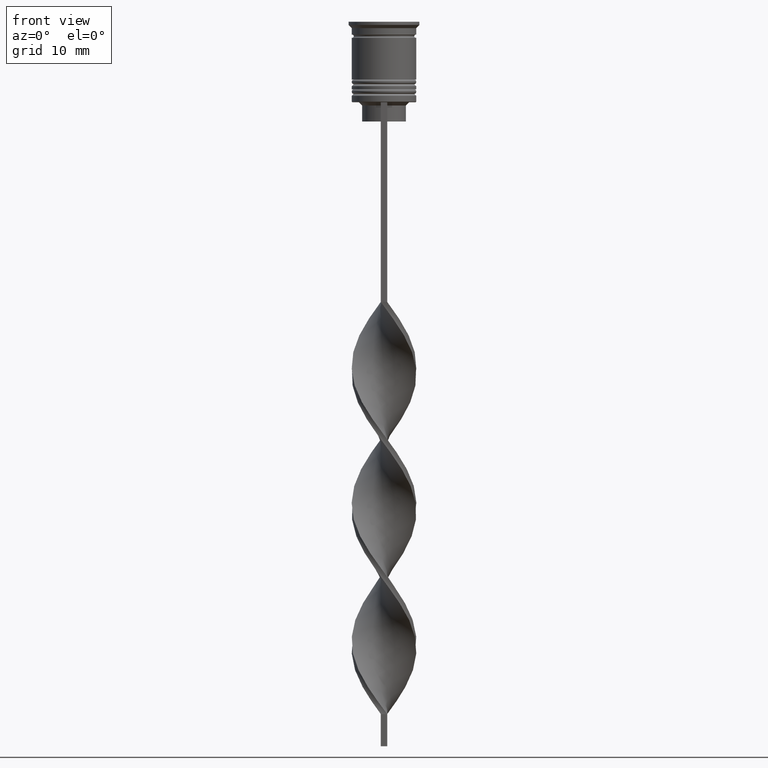
[diagram: clean part render]
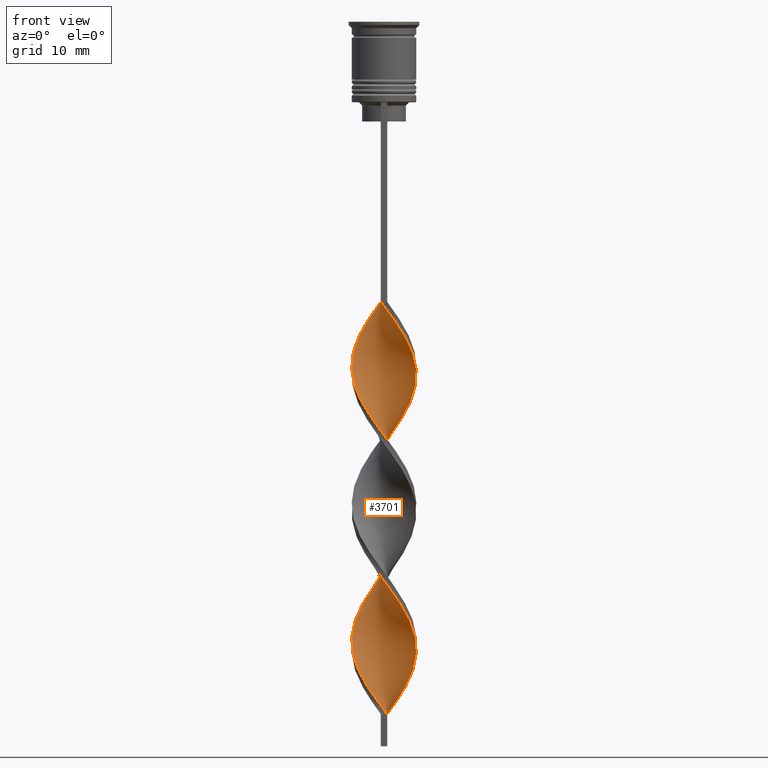
[diagram: same view with one face highlighted and labeled with its STEP entity id]
A machine part, front view. The second image highlights one B-rep face of the part: STEP entity #3701.
In plain terms, the highlighted face is a freeform B-spline surface patch.
Its self-contained STEP definition (entity closure, byte-faithful):
#10 = CARTESIAN_POINT ( 'NONE',  ( 3.830886956102703245, -3.251815666602607013, -92.73076923076922640 ) ) ;
#15 = CARTESIAN_POINT ( 'NONE',  ( 3.830886956102703245, -3.251815666602607013, -92.73076923076922640 ) ) ;
#29 = CARTESIAN_POINT ( 'NONE',  ( 0.5000000000000006661, 4.999999999999999112, -107.5000000000000000 ) ) ;
#45 = CARTESIAN_POINT ( 'NONE',  ( 4.769828676396802969, -1.694403338218443800, -95.19230769230769340 ) ) ;
#51 = CARTESIAN_POINT ( 'NONE',  ( 3.436045048790602241, 3.716969558312884114, -80.42307692307691980 ) ) ;
#63 = CARTESIAN_POINT ( 'NONE',  ( -1.315104909338224992, -4.888022846936948440, -105.0384615384615330 ) ) ;
#72 = CARTESIAN_POINT ( 'NONE',  ( -0.7111074127247647425, -4.974366919274038956, -105.8589743589743506 ) ) ;
#85 = CARTESIAN_POINT ( 'NONE',  ( -4.398951702833860722, 2.428831800708952215, -92.73076923076922640 ) ) ;
#117 = CARTESIAN_POINT ( 'NONE',  ( -2.766343873045447932, 4.194918542244166382, -89.44871794871794179 ) ) ;
#125 = CARTESIAN_POINT ( 'NONE',  ( -2.446670785446253937, -4.431260581638920115, -103.3974358974358836 ) ) ;
#140 = CARTESIAN_POINT ( 'NONE',  ( 3.830886956102705465, 3.251815666602607013, -79.60256410256410220 ) ) ;
#148 = EDGE_CURVE ( 'NONE', #2840, #2942, #2024, .T. ) ;
#150 = CARTESIAN_POINT ( 'NONE',  ( -0.1071099161113013842, 5.060710991611129472, -65.65384615384614619 ) ) ;
#177 = CARTESIAN_POINT ( 'NONE',  ( 4.398951702833859834, 2.428831800708949995, -58.26923076923076650 ) ) ;
#204 = CARTESIAN_POINT ( 'NONE',  ( 2.766343873045447488, 4.194918542244164605, -61.55128205128204399 ) ) ;
#217 = CARTESIAN_POINT ( 'NONE',  ( 5.036723384328412934, -0.5036723384328417596, -54.16666666666665719 ) ) ;
#221 = CARTESIAN_POINT ( 'NONE',  ( -1.315104909338220551, 4.888022846936948440, -67.29487179487178139 ) ) ;
#237 = CARTESIAN_POINT ( 'NONE',  ( -0.5000000000000000000, -4.999999999999999112, -43.50000000000000000 ) ) ;
#242 = CARTESIAN_POINT ( 'NONE',  ( -4.693865276989236612, 1.894702360851924228, -50.88461538461537970 ) ) ;
#256 = CARTESIAN_POINT ( 'NONE',  ( -0.5000000000000000000, 5.000000000000000888, -43.50000000000000000 ) ) ;
#262 = CARTESIAN_POINT ( 'NONE',  ( 5.010902036907447510, 0.7163302668880174862, -98.47435897435896379 ) ) ;
#264 = CARTESIAN_POINT ( 'NONE',  ( -0.7111074127247647425, -4.974366919274038956, -63.19230769230768630 ) ) ;
#274 = CARTESIAN_POINT ( 'NONE',  ( -1.880887847392239021, -4.659641714287934278, -61.55128205128204399 ) ) ;
#288 = CARTESIAN_POINT ( 'NONE',  ( 0.1071099161113025638, -5.060710991611130360, -86.98717948717948900 ) ) ;
#293 = CARTESIAN_POINT ( 'NONE',  ( 4.104038128678484831, -2.962961240565980425, -70.57692307692306599 ) ) ;
#310 = CARTESIAN_POINT ( 'NONE',  ( 5.010902036907448398, 0.7163302668880174862, -98.47435897435896379 ) ) ;
#313 = CARTESIAN_POINT ( 'NONE',  ( 5.036723384328413822, -0.5036723384328417596, -96.83333333333332860 ) ) ;
#324 = CARTESIAN_POINT ( 'NONE',  ( 0.4999999999999993339, -5.000000000000000888, -107.5000000000000000 ) ) ;
#332 = CARTESIAN_POINT ( 'NONE',  ( 3.689868665289526728, 3.410992411735105811, -102.5769230769230660 ) ) ;
#350 = CARTESIAN_POINT ( 'NONE',  ( -5.036723384328414710, -0.5036723384328410935, -96.83333333333332860 ) ) ;
#367 = CARTESIAN_POINT ( 'NONE',  ( 0.7111074127247676291, 4.974366919274039844, -84.52564102564103621 ) ) ;
#373 = CARTESIAN_POINT ( 'NONE',  ( 3.830886956102705465, 3.251815666602607013, -79.60256410256410220 ) ) ;
#401 = CARTESIAN_POINT ( 'NONE',  ( 4.398951702833860722, -2.428831800708952215, -71.39743589743588359 ) ) ;
#406 = CARTESIAN_POINT ( 'NONE',  ( -3.830886956102705021, -3.251815666602607013, -100.9358974358974308 ) ) ;
#415 = CARTESIAN_POINT ( 'NONE',  ( 2.766343873045447488, -4.194918542244166382, -68.11538461538459899 ) ) ;
#426 = CARTESIAN_POINT ( 'NONE',  ( 2.256988544190328128, 4.530813501584091796, -62.37179487179486870 ) ) ;
#456 = CARTESIAN_POINT ( 'NONE',  ( 1.315104909338222106, -4.888022846936947552, -45.96153846153845279 ) ) ;
#472 = CARTESIAN_POINT ( 'NONE',  ( 4.852383656948341617, 1.305516313869969469, -56.62820512820513130 ) ) ;
#498 = CARTESIAN_POINT ( 'NONE',  ( -4.225728863414807357, 2.786661774892330357, -72.21794871794871540 ) ) ;
#510 = CARTESIAN_POINT ( 'NONE',  ( 5.023812710617931110, 0.1063289642275872526, -54.98717948717948190 ) ) ;
#524 = CARTESIAN_POINT ( 'NONE',  ( -0.1071099161113013842, 5.060710991611130360, -65.65384615384614619 ) ) ;
#528 = CARTESIAN_POINT ( 'NONE',  ( 4.497778769905805163, -2.240532556555385746, -94.37179487179486159 ) ) ;
#530 = CARTESIAN_POINT ( 'NONE',  ( -2.766343873045447932, 4.194918542244166382, -46.78205128205127750 ) ) ;
#546 = CARTESIAN_POINT ( 'NONE',  ( 4.852383656948341617, 1.305516313869969469, -99.29487179487178139 ) ) ;
#553 = CARTESIAN_POINT ( 'NONE',  ( -4.769828676396804745, -1.694403338218443134, -55.80769230769230660 ) ) ;
#561 = CARTESIAN_POINT ( 'NONE',  ( -4.693865276989234836, -1.894702360851920009, -78.78205128205127039 ) ) ;
#566 = CARTESIAN_POINT ( 'NONE',  ( 2.256988544190325463, -4.530813501584094460, -67.29487179487178139 ) ) ;
#578 = CARTESIAN_POINT ( 'NONE',  ( -1.107109916111305381, -4.939289008388868751, -85.34615384615383959 ) ) ;
#600 = CARTESIAN_POINT ( 'NONE',  ( -1.682049230150818975, -4.735051254986478497, -84.52564102564103621 ) ) ;
#606 = CARTESIAN_POINT ( 'NONE',  ( -0.1071099161113050757, -5.060710991611131249, -106.6794871794871824 ) ) ;
#620 = CARTESIAN_POINT ( 'NONE',  ( -5.036723384328414710, -0.5036723384328410935, -54.16666666666665719 ) ) ;
#635 = EDGE_CURVE ( 'NONE', #3234, #2840, #2471, .T. ) ;
#638 = CARTESIAN_POINT ( 'NONE',  ( -0.5000000000000000000, 5.000000000000000888, -86.16666666666667140 ) ) ;
#672 =( BOUNDED_CURVE ( )  B_SPLINE_CURVE ( 2, ( #1167, #2320, #1111, #2263, #530, #2808, #2544, #2827, #1701, #242, #1127, #811, #2244, #3123, #850, #553, #2042, #3698, #2843, #3454, #1151, #2561, #886, #1418, #264, #1376, #2008, #3142, #2527, #566, #1967, #1716, #2858, #293, #2303, #3381, #3664, #3439, #867, #1094, #1242, #1820, #3533, #945, #373, #51, #1536, #3516, #2959, #3476, #2634, #3553, #1476, #2393, #1779, #3233, #2379, #3254, #2133, #2361, #2659, #682, #1551, #966, #2118, #2920, #1796, #3499, #3197, #3214, #406, #2097, #1840, #125, #2673, #1227, #72, #606, #1494 ),
 .UNSPECIFIED., .F., .T. ) 
 B_SPLINE_CURVE_WITH_KNOTS ( ( 3, 2, 2, 2, 2, 2, 2, 2, 2, 2, 2, 2, 2, 2, 2, 2, 2, 2, 2, 2, 2, 2, 2, 2, 2, 2, 2, 2, 2, 2, 2, 2, 2, 2, 2, 2, 2, 2, 2, 3 ),
 ( 0.000000000000000000, 0.01923076923076923184, 0.03846153846153846367, 0.05769230769230768857, 0.07692307692307692735, 0.09615384615384615918, 0.1153846153846153771, 0.1346153846153846090, 0.1538461538461538547, 0.1730769230769230449, 0.1923076923076923184, 0.2115384615384615363, 0.2307692307692307543, 0.2500000000000000000, 0.2692307692307692180, 0.2884615384615384359, 0.3076923076923077094, 0.3269230769230769273, 0.3461538461538460898, 0.3653846153846153633, 0.3846153846153846367, 0.4038461538461539102, 0.4230769230769230727, 0.4423076923076922906, 0.4615384615384615086, 0.4807692307692307820, 0.5000000000000000000, 0.5192307692307692735, 0.5384615384615384359, 0.5576923076923077094, 0.5769230769230768718, 0.5961538461538461453, 0.6153846153846154188, 0.6346153846153845812, 0.6538461538461538547, 0.6730769230769230171, 0.6923076923076921796, 0.7115384615384615641, 0.7307692307692307265, 0.7500000000000000000 ),
 .UNSPECIFIED. ) 
 CURVE ( )  GEOMETRIC_REPRESENTATION_ITEM ( )  RATIONAL_B_SPLINE_CURVE ( ( 1.000000000000000000, 0.9927088740980539727, 1.000000000000000000, 0.9927088740980539727, 1.000000000000000000, 0.9927088740980539727, 1.000000000000000000, 0.9927088740980539727, 1.000000000000000000, 0.9927088740980539727, 1.000000000000000000, 0.9927088740980539727, 1.000000000000000000, 0.9927088740980539727, 1.000000000000000000, 0.9927088740980539727, 1.000000000000000000, 0.9927088740980539727, 1.000000000000000000, 0.9927088740980539727, 1.000000000000000000, 0.9927088740980539727, 1.000000000000000000, 0.9927088740980539727, 1.000000000000000000, 0.9927088740980539727, 1.000000000000000000, 0.9927088740980539727, 1.000000000000000000, 0.9927088740980539727, 1.000000000000000000, 0.9927088740980539727, 1.000000000000000000, 0.9927088740980539727, 1.000000000000000000, 0.9927088740980539727, 1.000000000000000000, 0.9927088740980539727, 1.000000000000000000, 0.9927088740980539727, 1.000000000000000000, 0.9927088740980539727, 1.000000000000000000, 0.9927088740980539727, 1.000000000000000000, 0.9927088740980539727, 1.000000000000000000, 0.9927088740980539727, 1.000000000000000000, 0.9927088740980539727, 1.000000000000000000, 0.9927088740980539727, 1.000000000000000000, 0.9927088740980539727, 1.000000000000000000, 0.9927088740980539727, 1.000000000000000000, 0.9927088740980539727, 1.000000000000000000, 0.9927088740980539727, 1.000000000000000000, 0.9927088740980539727, 1.000000000000000000, 0.9927088740980539727, 1.000000000000000000, 0.9927088740980539727, 1.000000000000000000, 0.9927088740980539727, 1.000000000000000000, 0.9927088740980539727, 1.000000000000000000, 0.9927088740980539727, 1.000000000000000000, 0.9927088740980539727, 1.000000000000000000, 0.9927088740980539727, 1.000000000000000000, 0.9927088740980539727, 1.000000000000000000 ) ) 
 REPRESENTATION_ITEM ( '' )  );
#677 = CARTESIAN_POINT ( 'NONE',  ( -4.769828676396805633, -1.694403338218443356, -98.47435897435896379 ) ) ;
#682 = CARTESIAN_POINT ( 'NONE',  ( -4.693865276989236612, 1.894702360851924228, -93.55128205128204399 ) ) ;
#694 = CARTESIAN_POINT ( 'NONE',  ( 1.682049230150813424, -4.735051254986482938, -66.47435897435896379 ) ) ;
#701 = CARTESIAN_POINT ( 'NONE',  ( -4.852383656948341617, -1.305516313869969913, -77.96153846153845279 ) ) ;
#709 = CARTESIAN_POINT ( 'NONE',  ( 0.4999999999999993339, -5.000000000000000888, -64.83333333333332860 ) ) ;
#750 = CARTESIAN_POINT ( 'NONE',  ( 1.880887847392237244, -4.659641714287933389, -46.78205128205127750 ) ) ;
#754 = CARTESIAN_POINT ( 'NONE',  ( 3.689868665289526728, 3.410992411735105811, -59.91025641025640880 ) ) ;
#792 = CARTESIAN_POINT ( 'NONE',  ( 0.5000000000000006661, 4.999999999999999112, -107.5000000000000000 ) ) ;
#806 = CARTESIAN_POINT ( 'NONE',  ( 3.275699201900568180, 3.859023582904236527, -60.73076923076922640 ) ) ;
#809 = CARTESIAN_POINT ( 'NONE',  ( 4.903276030362607507, -1.099037838325642946, -96.01282051282051100 ) ) ;
#811 = CARTESIAN_POINT ( 'NONE',  ( -5.010902036907450174, 0.7163302668880185964, -52.52564102564102910 ) ) ;
#822 = CARTESIAN_POINT ( 'NONE',  ( -2.766343873045447932, 4.194918542244166382, -46.78205128205127750 ) ) ;
#843 = CARTESIAN_POINT ( 'NONE',  ( -0.1071099161113050757, -5.060710991611132137, -64.01282051282051100 ) ) ;
#848 = CARTESIAN_POINT ( 'NONE',  ( 4.693865276989234836, 1.894702360851922895, -100.1153846153846132 ) ) ;
#850 = CARTESIAN_POINT ( 'NONE',  ( -4.903276030362609283, -1.099037838325641614, -54.98717948717948190 ) ) ;
#861 = CARTESIAN_POINT ( 'NONE',  ( 4.693865276989234836, 1.894702360851922673, -100.1153846153846274 ) ) ;
#867 = CARTESIAN_POINT ( 'NONE',  ( 5.023812710617932886, -0.1063289642275909302, -74.67948717948718240 ) ) ;
#881 = CARTESIAN_POINT ( 'NONE',  ( -2.766343873045450152, -4.194918542244163717, -82.88461538461537259 ) ) ;
#886 = CARTESIAN_POINT ( 'NONE',  ( -1.880887847392239021, -4.659641714287934278, -61.55128205128204399 ) ) ;
#904 = CARTESIAN_POINT ( 'NONE',  ( -4.852383656948343393, 1.305516313869971912, -51.70512820512820440 ) ) ;
#923 = CARTESIAN_POINT ( 'NONE',  ( 5.010902036907450174, -0.7163302668880181523, -73.85897435897436480 ) ) ;
#939 = CARTESIAN_POINT ( 'NONE',  ( 4.225728863414811798, 2.786661774892325916, -78.78205128205127039 ) ) ;
#945 = CARTESIAN_POINT ( 'NONE',  ( 4.225728863414812686, 2.786661774892325916, -78.78205128205127039 ) ) ;
#958 = CARTESIAN_POINT ( 'NONE',  ( 3.436045048790602241, 3.716969558312884114, -80.42307692307691980 ) ) ;
#966 = CARTESIAN_POINT ( 'NONE',  ( -5.010902036907450174, 0.7163302668880185964, -95.19230769230769340 ) ) ;
#972 = VECTOR ( 'NONE', #2849, 1000.000000000000000 ) ;
#978 = CARTESIAN_POINT ( 'NONE',  ( -2.256988544190326795, 4.530813501584094460, -88.62820512820513841 ) ) ;
#986 = CARTESIAN_POINT ( 'NONE',  ( -5.023812710617931110, -0.1063289642275845326, -76.32051282051281760 ) ) ;
#994 = CARTESIAN_POINT ( 'NONE',  ( -1.682049230150814978, 4.735051254986482050, -87.80769230769230660 ) ) ;
#1003 = CARTESIAN_POINT ( 'NONE',  ( -4.104038128678487496, -2.962961240565973764, -80.42307692307691980 ) ) ;
#1017 = CARTESIAN_POINT ( 'NONE',  ( -4.225728863414807357, 2.786661774892329912, -72.21794871794871540 ) ) ;
#1021 = CARTESIAN_POINT ( 'NONE',  ( 3.436045048790597800, -3.716969558312886335, -49.24358974358974450 ) ) ;
#1036 = CARTESIAN_POINT ( 'NONE',  ( 2.766343873045447488, 4.194918542244164605, -61.55128205128204399 ) ) ;
#1039 = CARTESIAN_POINT ( 'NONE',  ( 4.693865276989234836, 1.894702360851922895, -57.44871794871794890 ) ) ;
#1055 = CARTESIAN_POINT ( 'NONE',  ( -2.446670785446251273, 4.431260581638919227, -68.93589743589743080 ) ) ;
#1067 = CARTESIAN_POINT ( 'NONE',  ( 2.446670785446252161, -4.431260581638920115, -47.60256410256408799 ) ) ;
#1089 = CARTESIAN_POINT ( 'NONE',  ( 3.436045048790597800, -3.716969558312886335, -49.24358974358973740 ) ) ;
#1092 = CARTESIAN_POINT ( 'NONE',  ( 4.104038128678485720, 2.962961240565976428, -101.7564102564102484 ) ) ;
#1094 = CARTESIAN_POINT ( 'NONE',  ( 5.036723384328415598, 0.5036723384328405384, -75.50000000000000000 ) ) ;
#1106 = CARTESIAN_POINT ( 'NONE',  ( -3.436045048790600465, -3.716969558312885891, -59.08974358974359120 ) ) ;
#1109 = CARTESIAN_POINT ( 'NONE',  ( 2.256988544190328128, 4.530813501584091796, -105.0384615384615188 ) ) ;
#1111 = CARTESIAN_POINT ( 'NONE',  ( -1.682049230150814978, 4.735051254986482050, -45.14102564102563520 ) ) ;
#1121 = CARTESIAN_POINT ( 'NONE',  ( -1.107109916111303161, 4.939289008388870528, -44.32051282051282470 ) ) ;
#1127 = CARTESIAN_POINT ( 'NONE',  ( -4.852383656948343393, 1.305516313869971912, -51.70512820512820440 ) ) ;
#1143 = CARTESIAN_POINT ( 'NONE',  ( 4.497778769905805163, -2.240532556555385746, -94.37179487179486159 ) ) ;
#1149 = CARTESIAN_POINT ( 'NONE',  ( 3.436045048790597800, -3.716969558312886335, -91.91025641025643722 ) ) ;
#1151 = CARTESIAN_POINT ( 'NONE',  ( -2.941357917118427423, -4.074115069975902337, -59.91025641025640880 ) ) ;
#1161 = CARTESIAN_POINT ( 'NONE',  ( 1.682049230150816088, 4.735051254986480274, -105.8589743589743506 ) ) ;
#1167 = CARTESIAN_POINT ( 'NONE',  ( -0.5000000000000000000, 5.000000000000000888, -43.50000000000000000 ) ) ;
#1172 = CARTESIAN_POINT ( 'NONE',  ( 0.4999999999999997780, -1.666666666666667851, -107.5000000000000000 ) ) ;
#1177 = CARTESIAN_POINT ( 'NONE',  ( -2.256988544190326795, 4.530813501584094460, -45.96153846153845279 ) ) ;
#1200 = CARTESIAN_POINT ( 'NONE',  ( -0.1071099161113050757, -5.060710991611132137, -106.6794871794871682 ) ) ;
#1222 = CARTESIAN_POINT ( 'NONE',  ( 4.769828676396806522, 1.694403338218441801, -77.14102564102563520 ) ) ;
#1227 = CARTESIAN_POINT ( 'NONE',  ( -1.315104909338224770, -4.888022846936948440, -105.0384615384615188 ) ) ;
#1242 = CARTESIAN_POINT ( 'NONE',  ( 4.903276030362611060, 1.099037838325638727, -76.32051282051281760 ) ) ;
#1255 = CARTESIAN_POINT ( 'NONE',  ( 1.315104909338225436, 4.888022846936948440, -83.70512820512820440 ) ) ;
#1275 = CARTESIAN_POINT ( 'NONE',  ( 2.941357917118427867, 4.074115069975902337, -81.24358974358973740 ) ) ;
#1283 = CARTESIAN_POINT ( 'NONE',  ( 3.830886956102703245, -3.251815666602607013, -50.06410256410256210 ) ) ;
#1293 = CARTESIAN_POINT ( 'NONE',  ( -1.880887847392236800, 4.659641714287933389, -68.11538461538459899 ) ) ;
#1312 = CARTESIAN_POINT ( 'NONE',  ( 0.1071099161113025638, -5.060710991611130360, -44.32051282051282470 ) ) ;
#1316 = CARTESIAN_POINT ( 'NONE',  ( 4.225728863414809133, -2.786661774892328136, -50.88461538461537970 ) ) ;
#1334 = CARTESIAN_POINT ( 'NONE',  ( 1.682049230150816088, 4.735051254986480274, -63.19230769230768630 ) ) ;
#1338 = CARTESIAN_POINT ( 'NONE',  ( 1.682049230150816088, 4.735051254986480274, -63.19230769230768630 ) ) ;
#1356 = CARTESIAN_POINT ( 'NONE',  ( -5.036723384328413822, 0.5036723384328424258, -75.50000000000000000 ) ) ;
#1368 = CARTESIAN_POINT ( 'NONE',  ( 4.225728863414809133, -2.786661774892327692, -50.88461538461538680 ) ) ;
#1374 = CARTESIAN_POINT ( 'NONE',  ( 2.766343873045447488, 4.194918542244164605, -104.2179487179487012 ) ) ;
#1376 = CARTESIAN_POINT ( 'NONE',  ( -0.1071099161113050757, -5.060710991611131249, -64.01282051282051100 ) ) ;
#1390 = CARTESIAN_POINT ( 'NONE',  ( 0.5000000000000006661, 4.999999999999999112, -107.5000000000000000 ) ) ;
#1393 = CARTESIAN_POINT ( 'NONE',  ( 5.023812710617931110, 0.1063289642275872526, -97.65384615384614619 ) ) ;
#1397 = CARTESIAN_POINT ( 'NONE',  ( 4.769828676396802969, -1.694403338218443578, -95.19230769230769340 ) ) ;
#1412 = CARTESIAN_POINT ( 'NONE',  ( -3.275699201900568180, 3.859023582904238303, -47.60256410256408799 ) ) ;
#1418 = CARTESIAN_POINT ( 'NONE',  ( -1.315104909338224770, -4.888022846936948440, -62.37179487179486870 ) ) ;
#1429 = CARTESIAN_POINT ( 'NONE',  ( 2.941357917118423870, -4.074115069975903225, -91.08974358974359120 ) ) ;
#1434 = CARTESIAN_POINT ( 'NONE',  ( -3.275699201900568625, -3.859023582904236527, -82.06410256410255499 ) ) ;
#1453 = CARTESIAN_POINT ( 'NONE',  ( 4.104038128678484831, 2.962961240565976428, -101.7564102564102484 ) ) ;
#1457 = CARTESIAN_POINT ( 'NONE',  ( 1.315104909338222328, -4.888022846936947552, -88.62820512820512420 ) ) ;
#1470 = CARTESIAN_POINT ( 'NONE',  ( -1.682049230150814978, 4.735051254986482050, -45.14102564102563520 ) ) ;
#1476 = CARTESIAN_POINT ( 'NONE',  ( -0.5000000000000000000, 5.000000000000000888, -86.16666666666667140 ) ) ;
#1487 = CARTESIAN_POINT ( 'NONE',  ( -3.436045048790600465, -3.716969558312885891, -101.7564102564102484 ) ) ;
#1494 = CARTESIAN_POINT ( 'NONE',  ( 0.4999999999999993339, -5.000000000000000888, -107.5000000000000000 ) ) ;
#1507 = CARTESIAN_POINT ( 'NONE',  ( 0.4999999999999993339, -5.000000000000000888, -107.5000000000000000 ) ) ;
#1510 = CARTESIAN_POINT ( 'NONE',  ( -1.107109916111303161, 4.939289008388870528, -86.98717948717948900 ) ) ;
#1531 = CARTESIAN_POINT ( 'NONE',  ( -2.446670785446253937, -4.431260581638921003, -103.3974358974358694 ) ) ;
#1536 = CARTESIAN_POINT ( 'NONE',  ( 2.941357917118427867, 4.074115069975902337, -81.24358974358973740 ) ) ;
#1551 = CARTESIAN_POINT ( 'NONE',  ( -4.852383656948343393, 1.305516313869971912, -94.37179487179486159 ) ) ;
#1565 = CARTESIAN_POINT ( 'NONE',  ( 4.104038128678483943, -2.962961240565979981, -70.57692307692306599 ) ) ;
#1575 = CARTESIAN_POINT ( 'NONE',  ( -4.693865276989234836, -1.894702360851920231, -78.78205128205127039 ) ) ;
#1592 = CARTESIAN_POINT ( 'NONE',  ( 1.880887847392237244, -4.659641714287933389, -46.78205128205127750 ) ) ;
#1608 = CARTESIAN_POINT ( 'NONE',  ( 0.1071099161113025777, -5.060710991611129472, -44.32051282051282470 ) ) ;
#1620 = CARTESIAN_POINT ( 'NONE',  ( -4.769828676396803857, 1.694403338218443356, -73.85897435897436480 ) ) ;
#1643 = CARTESIAN_POINT ( 'NONE',  ( -4.769828676396803857, 1.694403338218443134, -73.85897435897436480 ) ) ;
#1656 = CARTESIAN_POINT ( 'NONE',  ( 3.689868665289526728, 3.410992411735105811, -59.91025641025640880 ) ) ;
#1672 = CARTESIAN_POINT ( 'NONE',  ( -0.7111074127247609677, 4.974366919274038956, -66.47435897435896379 ) ) ;
#1677 = CARTESIAN_POINT ( 'NONE',  ( -0.5000000000000000000, -4.999999999999999112, -86.16666666666667140 ) ) ;
#1695 = CARTESIAN_POINT ( 'NONE',  ( -3.275699201900568625, -3.859023582904236527, -82.06410256410255499 ) ) ;
#1699 = CARTESIAN_POINT ( 'NONE',  ( -1.107109916111305603, -4.939289008388868751, -85.34615384615385381 ) ) ;
#1701 = CARTESIAN_POINT ( 'NONE',  ( -4.398951702833860722, 2.428831800708952215, -50.06410256410256210 ) ) ;
#1709 = CARTESIAN_POINT ( 'NONE',  ( 0.5000000000000006661, 4.999999999999999112, -107.5000000000000000 ) ) ;
#1711 = CARTESIAN_POINT ( 'NONE',  ( -2.256988544190328128, -4.530813501584091796, -83.70512820512820440 ) ) ;
#1716 = CARTESIAN_POINT ( 'NONE',  ( 3.275699201900568180, -3.859023582904239191, -68.93589743589743080 ) ) ;
#1723 = CARTESIAN_POINT ( 'NONE',  ( -0.5000000000000000000, -4.999999999999999112, -43.50000000000000000 ) ) ;
#1729 = CARTESIAN_POINT ( 'NONE',  ( -5.010902036907449286, -0.7163302668880155988, -77.14102564102563520 ) ) ;
#1754 = CARTESIAN_POINT ( 'NONE',  ( 4.398951702833859834, 2.428831800708949995, -100.9358974358974308 ) ) ;
#1772 = CARTESIAN_POINT ( 'NONE',  ( -4.769828676396805633, -1.694403338218443356, -55.80769230769230660 ) ) ;
#1779 = CARTESIAN_POINT ( 'NONE',  ( -1.682049230150814978, 4.735051254986482050, -87.80769230769230660 ) ) ;
#1789 = CARTESIAN_POINT ( 'NONE',  ( 3.689868665289526284, -3.410992411735109808, -69.75641025641024839 ) ) ;
#1796 = CARTESIAN_POINT ( 'NONE',  ( -4.903276030362609283, -1.099037838325641614, -97.65384615384614619 ) ) ;
#1812 = CARTESIAN_POINT ( 'NONE',  ( -4.104038128678484831, 2.962961240565979093, -91.91025641025643722 ) ) ;
#1820 = CARTESIAN_POINT ( 'NONE',  ( 4.769828676396805633, 1.694403338218441579, -77.14102564102563520 ) ) ;
#1834 = CARTESIAN_POINT ( 'NONE',  ( -0.7111074127247647425, -4.974366919274038956, -105.8589743589743506 ) ) ;
#1835 =( BOUNDED_SURFACE ( )  B_SPLINE_SURFACE ( 1, 2, ( 
 ( #237, #1312, #3027, #456, #750, #1067, #3323, #1089, #3040, #1368, #3062, #2238, #3376, #217, #510, #3600, #472, #2744, #177, #3096, #1656, #806, #1036, #2185, #1334, #1907, #1962, #524, #1672, #2819, #1293, #2444, #2499, #3634, #3580, #1017, #2167, #1620, #1925, #2764, #2482, #1729, #2539, #561, #2897, #2853, #2611, #1695, #881, #1711, #600, #578, #2314, #288, #2838, #2036, #2573, #2872, #1429, #3449, #10, #3433, #1143, #45, #3169, #2297, #1393, #310, #546, #861, #1754, #1453, #332, #2592, #2017, #3394, #1161, #3152, #29 ),
 ( #256, #1121, #1470, #1177, #822, #1412, #1977, #2274, #2333, #3468, #904, #2059, #3192, #620, #2555, #1772, #3134, #3413, #3674, #1106, #2257, #3116, #274, #2002, #3692, #843, #709, #2914, #694, #2074, #415, #1851, #1789, #1565, #401, #2987, #2931, #923, #3208, #2373, #2685, #1222, #2705, #939, #140, #958, #1275, #2427, #3249, #1255, #367, #2090, #638, #1510, #994, #978, #117, #2654, #3494, #1812, #85, #2408, #3547, #2128, #3562, #350, #3264, #677, #2970, #2144, #3281, #1487, #3510, #1531, #2627, #63, #1834, #1200, #3226 ) ),
 .UNSPECIFIED., .F., .F., .F. ) 
 B_SPLINE_SURFACE_WITH_KNOTS ( ( 2, 2 ),
 ( 3, 2, 2, 2, 2, 2, 2, 2, 2, 2, 2, 2, 2, 2, 2, 2, 2, 2, 2, 2, 2, 2, 2, 2, 2, 2, 2, 2, 2, 2, 2, 2, 2, 2, 2, 2, 2, 2, 2, 3 ),
 ( 0.000000000000000000, 1.000000000000000000 ),
 ( 0.000000000000000000, 0.01923076923076923184, 0.03846153846153846367, 0.05769230769230769551, 0.07692307692307692735, 0.09615384615384615918, 0.1153846153846153910, 0.1346153846153846090, 0.1538461538461538547, 0.1730769230769230727, 0.1923076923076923184, 0.2115384615384615363, 0.2307692307692307820, 0.2500000000000000000, 0.2692307692307692180, 0.2884615384615384359, 0.3076923076923077094, 0.3269230769230769273, 0.3461538461538461453, 0.3653846153846153633, 0.3846153846153846367, 0.4038461538461538547, 0.4230769230769230727, 0.4423076923076922906, 0.4615384615384615641, 0.4807692307692307820, 0.5000000000000000000, 0.5192307692307692735, 0.5384615384615384359, 0.5576923076923077094, 0.5769230769230768718, 0.5961538461538461453, 0.6153846153846154188, 0.6346153846153845812, 0.6538461538461538547, 0.6730769230769231282, 0.6923076923076922906, 0.7115384615384615641, 0.7307692307692307265, 0.7500000000000000000 ),
 .UNSPECIFIED. ) 
 GEOMETRIC_REPRESENTATION_ITEM ( )  RATIONAL_B_SPLINE_SURFACE ( (
 ( 1.000000000000000000, 0.9927088740980539727, 1.000000000000000000, 0.9927088740980539727, 1.000000000000000000, 0.9927088740980539727, 1.000000000000000000, 0.9927088740980539727, 1.000000000000000000, 0.9927088740980539727, 1.000000000000000000, 0.9927088740980539727, 1.000000000000000000, 0.9927088740980539727, 1.000000000000000000, 0.9927088740980539727, 1.000000000000000000, 0.9927088740980539727, 1.000000000000000000, 0.9927088740980539727, 1.000000000000000000, 0.9927088740980539727, 1.000000000000000000, 0.9927088740980539727, 1.000000000000000000, 0.9927088740980539727, 1.000000000000000000, 0.9927088740980539727, 1.000000000000000000, 0.9927088740980539727, 1.000000000000000000, 0.9927088740980539727, 1.000000000000000000, 0.9927088740980539727, 1.000000000000000000, 0.9927088740980539727, 1.000000000000000000, 0.9927088740980539727, 1.000000000000000000, 0.9927088740980539727, 1.000000000000000000, 0.9927088740980539727, 1.000000000000000000, 0.9927088740980539727, 1.000000000000000000, 0.9927088740980539727, 1.000000000000000000, 0.9927088740980539727, 1.000000000000000000, 0.9927088740980539727, 1.000000000000000000, 0.9927088740980539727, 1.000000000000000000, 0.9927088740980539727, 1.000000000000000000, 0.9927088740980539727, 1.000000000000000000, 0.9927088740980539727, 1.000000000000000000, 0.9927088740980539727, 1.000000000000000000, 0.9927088740980539727, 1.000000000000000000, 0.9927088740980539727, 1.000000000000000000, 0.9927088740980539727, 1.000000000000000000, 0.9927088740980539727, 1.000000000000000000, 0.9927088740980539727, 1.000000000000000000, 0.9927088740980539727, 1.000000000000000000, 0.9927088740980539727, 1.000000000000000000, 0.9927088740980539727, 1.000000000000000000, 0.9927088740980539727, 1.000000000000000000),
 ( 1.000000000000000000, 0.9927088740980539727, 1.000000000000000000, 0.9927088740980539727, 1.000000000000000000, 0.9927088740980539727, 1.000000000000000000, 0.9927088740980539727, 1.000000000000000000, 0.9927088740980539727, 1.000000000000000000, 0.9927088740980539727, 1.000000000000000000, 0.9927088740980539727, 1.000000000000000000, 0.9927088740980539727, 1.000000000000000000, 0.9927088740980539727, 1.000000000000000000, 0.9927088740980539727, 1.000000000000000000, 0.9927088740980539727, 1.000000000000000000, 0.9927088740980539727, 1.000000000000000000, 0.9927088740980539727, 1.000000000000000000, 0.9927088740980539727, 1.000000000000000000, 0.9927088740980539727, 1.000000000000000000, 0.9927088740980539727, 1.000000000000000000, 0.9927088740980539727, 1.000000000000000000, 0.9927088740980539727, 1.000000000000000000, 0.9927088740980539727, 1.000000000000000000, 0.9927088740980539727, 1.000000000000000000, 0.9927088740980539727, 1.000000000000000000, 0.9927088740980539727, 1.000000000000000000, 0.9927088740980539727, 1.000000000000000000, 0.9927088740980539727, 1.000000000000000000, 0.9927088740980539727, 1.000000000000000000, 0.9927088740980539727, 1.000000000000000000, 0.9927088740980539727, 1.000000000000000000, 0.9927088740980539727, 1.000000000000000000, 0.9927088740980539727, 1.000000000000000000, 0.9927088740980539727, 1.000000000000000000, 0.9927088740980539727, 1.000000000000000000, 0.9927088740980539727, 1.000000000000000000, 0.9927088740980539727, 1.000000000000000000, 0.9927088740980539727, 1.000000000000000000, 0.9927088740980539727, 1.000000000000000000, 0.9927088740980539727, 1.000000000000000000, 0.9927088740980539727, 1.000000000000000000, 0.9927088740980539727, 1.000000000000000000, 0.9927088740980539727, 1.000000000000000000) ) ) 
 REPRESENTATION_ITEM ( '' )  SURFACE ( )  );
#1840 = CARTESIAN_POINT ( 'NONE',  ( -2.941357917118427423, -4.074115069975902337, -102.5769230769230660 ) ) ;
#1851 = CARTESIAN_POINT ( 'NONE',  ( 3.275699201900568180, -3.859023582904239191, -68.93589743589743080 ) ) ;
#1858 = CARTESIAN_POINT ( 'NONE',  ( -1.880887847392236800, 4.659641714287933389, -68.11538461538459899 ) ) ;
#1882 = CARTESIAN_POINT ( 'NONE',  ( 4.852383656948341617, 1.305516313869969469, -56.62820512820513130 ) ) ;
#1907 = CARTESIAN_POINT ( 'NONE',  ( 1.107109916111304715, 4.939289008388868751, -64.01282051282051100 ) ) ;
#1914 = ORIENTED_EDGE ( 'NONE', *, *, #2046, .T. ) ;
#1925 = CARTESIAN_POINT ( 'NONE',  ( -4.903276030362607507, 1.099037838325644723, -74.67948717948718240 ) ) ;
#1929 = CARTESIAN_POINT ( 'NONE',  ( 1.315104909338222328, -4.888022846936947552, -45.96153846153845990 ) ) ;
#1962 = CARTESIAN_POINT ( 'NONE',  ( 0.5000000000000006661, 4.999999999999999112, -64.83333333333332860 ) ) ;
#1967 = CARTESIAN_POINT ( 'NONE',  ( 2.766343873045447488, -4.194918542244166382, -68.11538461538459899 ) ) ;
#1968 = ORIENTED_EDGE ( 'NONE', *, *, #148, .F. ) ;
#1977 = CARTESIAN_POINT ( 'NONE',  ( -3.689868665289526728, 3.410992411735109364, -48.42307692307691269 ) ) ;
#1984 = CARTESIAN_POINT ( 'NONE',  ( 5.023812710617931110, 0.1063289642275872526, -97.65384615384614619 ) ) ;
#2002 = CARTESIAN_POINT ( 'NONE',  ( -1.315104909338224992, -4.888022846936948440, -62.37179487179486870 ) ) ;
#2008 = CARTESIAN_POINT ( 'NONE',  ( 0.4999999999999993339, -5.000000000000000888, -64.83333333333332860 ) ) ;
#2017 = CARTESIAN_POINT ( 'NONE',  ( 2.766343873045447488, 4.194918542244164605, -104.2179487179487012 ) ) ;
#2024 = B_SPLINE_CURVE_WITH_KNOTS ( 'NONE', 3,
 ( #1390, #2536, #1172, #324 ),
 .UNSPECIFIED., .F., .F.,
 ( 4, 4 ),
 ( 0.000000000000000000, 1.000000000000000000 ),
 .UNSPECIFIED. ) ;
#2036 = CARTESIAN_POINT ( 'NONE',  ( 1.315104909338222106, -4.888022846936947552, -88.62820512820513841 ) ) ;
#2042 = CARTESIAN_POINT ( 'NONE',  ( -4.497778769905806939, -2.240532556555384858, -56.62820512820513130 ) ) ;
#2046 = EDGE_CURVE ( 'NONE', #3404, #2942, #672, .T. ) ;
#2059 = CARTESIAN_POINT ( 'NONE',  ( -5.010902036907451063, 0.7163302668880185964, -52.52564102564103621 ) ) ;
#2074 = CARTESIAN_POINT ( 'NONE',  ( 2.256988544190325463, -4.530813501584094460, -67.29487179487178139 ) ) ;
#2090 = CARTESIAN_POINT ( 'NONE',  ( 0.1071099161113056170, 5.060710991611132137, -85.34615384615383959 ) ) ;
#2097 = CARTESIAN_POINT ( 'NONE',  ( -3.436045048790600465, -3.716969558312885891, -101.7564102564102484 ) ) ;
#2118 = CARTESIAN_POINT ( 'NONE',  ( -5.023812710617932886, 0.1063289642275891955, -96.01282051282051100 ) ) ;
#2128 = CARTESIAN_POINT ( 'NONE',  ( -5.010902036907451063, 0.7163302668880185964, -95.19230769230769340 ) ) ;
#2133 = CARTESIAN_POINT ( 'NONE',  ( -3.689868665289526728, 3.410992411735109364, -91.08974358974359120 ) ) ;
#2135 = CARTESIAN_POINT ( 'NONE',  ( -5.010902036907448398, -0.7163302668880155988, -77.14102564102563520 ) ) ;
#2144 = CARTESIAN_POINT ( 'NONE',  ( -4.225728863414810910, -2.786661774892328136, -100.1153846153846274 ) ) ;
#2150 = ORIENTED_EDGE ( 'NONE', *, *, #635, .F. ) ;
#2167 = CARTESIAN_POINT ( 'NONE',  ( -4.497778769905805163, 2.240532556555386634, -73.03846153846153300 ) ) ;
#2185 = CARTESIAN_POINT ( 'NONE',  ( 2.256988544190327683, 4.530813501584091796, -62.37179487179486870 ) ) ;
#2189 = CARTESIAN_POINT ( 'NONE',  ( 4.104038128678485720, 2.962961240565976428, -59.08974358974358410 ) ) ;
#2204 = CARTESIAN_POINT ( 'NONE',  ( -3.436045048790596468, 3.716969558312887667, -70.57692307692306599 ) ) ;
#2224 = CARTESIAN_POINT ( 'NONE',  ( -1.682049230150818975, -4.735051254986478497, -84.52564102564103621 ) ) ;
#2233 = CARTESIAN_POINT ( 'NONE',  ( -0.5000000000000000000, -4.999999999999999112, -43.50000000000000000 ) ) ;
#2238 = CARTESIAN_POINT ( 'NONE',  ( 4.769828676396802969, -1.694403338218443800, -52.52564102564103621 ) ) ;
#2244 = CARTESIAN_POINT ( 'NONE',  ( -5.023812710617932886, 0.1063289642275891955, -53.34615384615383959 ) ) ;
#2257 = CARTESIAN_POINT ( 'NONE',  ( -2.941357917118427423, -4.074115069975902337, -59.91025641025640880 ) ) ;
#2261 = CARTESIAN_POINT ( 'NONE',  ( 3.689868665289526728, 3.410992411735105811, -102.5769230769230660 ) ) ;
#2263 = CARTESIAN_POINT ( 'NONE',  ( -2.256988544190327239, 4.530813501584094460, -45.96153846153845990 ) ) ;
#2274 = CARTESIAN_POINT ( 'NONE',  ( -4.104038128678484831, 2.962961240565979093, -49.24358974358973740 ) ) ;
#2277 = ORIENTED_EDGE ( 'NONE', *, *, #3227, .T. ) ;
#2297 = CARTESIAN_POINT ( 'NONE',  ( 5.036723384328412934, -0.5036723384328417596, -96.83333333333332860 ) ) ;
#2301 = CARTESIAN_POINT ( 'NONE',  ( 1.682049230150816088, 4.735051254986480274, -105.8589743589743506 ) ) ;
#2303 = CARTESIAN_POINT ( 'NONE',  ( 4.398951702833860722, -2.428831800708952215, -71.39743589743588359 ) ) ;
#2314 = CARTESIAN_POINT ( 'NONE',  ( -0.5000000000000000000, -4.999999999999999112, -86.16666666666667140 ) ) ;
#2320 = CARTESIAN_POINT ( 'NONE',  ( -1.107109916111303161, 4.939289008388870528, -44.32051282051282470 ) ) ;
#2333 = CARTESIAN_POINT ( 'NONE',  ( -4.398951702833860722, 2.428831800708952215, -50.06410256410256210 ) ) ;
#2361 = CARTESIAN_POINT ( 'NONE',  ( -4.104038128678485720, 2.962961240565979537, -91.91025641025643722 ) ) ;
#2373 = CARTESIAN_POINT ( 'NONE',  ( 5.036723384328414710, 0.5036723384328404274, -75.49999999999998579 ) ) ;
#2379 = CARTESIAN_POINT ( 'NONE',  ( -2.766343873045447932, 4.194918542244166382, -89.44871794871794179 ) ) ;
#2393 = CARTESIAN_POINT ( 'NONE',  ( -1.107109916111303161, 4.939289008388870528, -86.98717948717948900 ) ) ;
#2408 = CARTESIAN_POINT ( 'NONE',  ( -4.693865276989236612, 1.894702360851924006, -93.55128205128204399 ) ) ;
#2427 = CARTESIAN_POINT ( 'NONE',  ( 2.446670785446254381, 4.431260581638921003, -82.06410256410255499 ) ) ;
#2433 = CARTESIAN_POINT ( 'NONE',  ( -4.398951702833860722, -2.428831800708949551, -79.60256410256410220 ) ) ;
#2444 = CARTESIAN_POINT ( 'NONE',  ( -2.446670785446251273, 4.431260581638920115, -68.93589743589743080 ) ) ;
#2469 = CARTESIAN_POINT ( 'NONE',  ( 4.497778769905805163, -2.240532556555385746, -51.70512820512820440 ) ) ;
#2471 =( BOUNDED_CURVE ( )  B_SPLINE_CURVE ( 2, ( #3066, #1608, #3570, #1929, #1592, #3583, #3273, #1021, #1283, #1316, #2469, #2733, #3326, #2715, #2994, #3603, #1882, #1039, #2769, #2189, #754, #3044, #204, #426, #1338, #2485, #3620, #150, #3016, #221, #1858, #1055, #3289, #2204, #3342, #498, #2502, #1643, #2787, #1356, #986, #2135, #701, #1575, #2433, #1003, #3100, #1434, #3419, #2542, #2224, #1699, #1677, #3364, #3154, #1457, #3639, #2578, #2806, #1149, #15, #3678, #528, #1397, #809, #313, #1984, #262, #3437, #848, #3662, #1092, #2261, #2825, #1374, #1109, #2301, #3397, #792 ),
 .UNSPECIFIED., .F., .T. ) 
 B_SPLINE_CURVE_WITH_KNOTS ( ( 3, 2, 2, 2, 2, 2, 2, 2, 2, 2, 2, 2, 2, 2, 2, 2, 2, 2, 2, 2, 2, 2, 2, 2, 2, 2, 2, 2, 2, 2, 2, 2, 2, 2, 2, 2, 2, 2, 2, 3 ),
 ( 0.000000000000000000, 0.01923076923076923184, 0.03846153846153846367, 0.05769230769230768857, 0.07692307692307692735, 0.09615384615384615918, 0.1153846153846153771, 0.1346153846153846090, 0.1538461538461538547, 0.1730769230769230449, 0.1923076923076923184, 0.2115384615384615363, 0.2307692307692307543, 0.2500000000000000000, 0.2692307692307692180, 0.2884615384615384359, 0.3076923076923077094, 0.3269230769230769273, 0.3461538461538460898, 0.3653846153846153633, 0.3846153846153846367, 0.4038461538461539102, 0.4230769230769230727, 0.4423076923076922906, 0.4615384615384615086, 0.4807692307692307820, 0.5000000000000000000, 0.5192307692307692735, 0.5384615384615384359, 0.5576923076923077094, 0.5769230769230768718, 0.5961538461538461453, 0.6153846153846154188, 0.6346153846153845812, 0.6538461538461538547, 0.6730769230769230171, 0.6923076923076921796, 0.7115384615384615641, 0.7307692307692307265, 0.7500000000000000000 ),
 .UNSPECIFIED. ) 
 CURVE ( )  GEOMETRIC_REPRESENTATION_ITEM ( )  RATIONAL_B_SPLINE_CURVE ( ( 1.000000000000000000, 0.9927088740980539727, 1.000000000000000000, 0.9927088740980539727, 1.000000000000000000, 0.9927088740980539727, 1.000000000000000000, 0.9927088740980539727, 1.000000000000000000, 0.9927088740980539727, 1.000000000000000000, 0.9927088740980539727, 1.000000000000000000, 0.9927088740980539727, 1.000000000000000000, 0.9927088740980539727, 1.000000000000000000, 0.9927088740980539727, 1.000000000000000000, 0.9927088740980539727, 1.000000000000000000, 0.9927088740980539727, 1.000000000000000000, 0.9927088740980539727, 1.000000000000000000, 0.9927088740980539727, 1.000000000000000000, 0.9927088740980539727, 1.000000000000000000, 0.9927088740980539727, 1.000000000000000000, 0.9927088740980539727, 1.000000000000000000, 0.9927088740980539727, 1.000000000000000000, 0.9927088740980539727, 1.000000000000000000, 0.9927088740980539727, 1.000000000000000000, 0.9927088740980539727, 1.000000000000000000, 0.9927088740980539727, 1.000000000000000000, 0.9927088740980539727, 1.000000000000000000, 0.9927088740980539727, 1.000000000000000000, 0.9927088740980539727, 1.000000000000000000, 0.9927088740980539727, 1.000000000000000000, 0.9927088740980539727, 1.000000000000000000, 0.9927088740980539727, 1.000000000000000000, 0.9927088740980539727, 1.000000000000000000, 0.9927088740980539727, 1.000000000000000000, 0.9927088740980539727, 1.000000000000000000, 0.9927088740980539727, 1.000000000000000000, 0.9927088740980539727, 1.000000000000000000, 0.9927088740980539727, 1.000000000000000000, 0.9927088740980539727, 1.000000000000000000, 0.9927088740980539727, 1.000000000000000000, 0.9927088740980539727, 1.000000000000000000, 0.9927088740980539727, 1.000000000000000000, 0.9927088740980539727, 1.000000000000000000, 0.9927088740980539727, 1.000000000000000000 ) ) 
 REPRESENTATION_ITEM ( '' )  );
#2482 = CARTESIAN_POINT ( 'NONE',  ( -5.023812710617931110, -0.1063289642275845326, -76.32051282051281760 ) ) ;
#2485 = CARTESIAN_POINT ( 'NONE',  ( 1.107109916111304937, 4.939289008388868751, -64.01282051282051100 ) ) ;
#2499 = CARTESIAN_POINT ( 'NONE',  ( -2.941357917118423870, 4.074115069975903225, -69.75641025641024839 ) ) ;
#2502 = CARTESIAN_POINT ( 'NONE',  ( -4.497778769905805163, 2.240532556555386634, -73.03846153846153300 ) ) ;
#2527 = CARTESIAN_POINT ( 'NONE',  ( 1.682049230150813424, -4.735051254986482938, -66.47435897435896379 ) ) ;
#2536 = CARTESIAN_POINT ( 'NONE',  ( 0.5000000000000002220, 1.666666666666666075, -107.5000000000000000 ) ) ;
#2539 = CARTESIAN_POINT ( 'NONE',  ( -4.852383656948341617, -1.305516313869969913, -77.96153846153845279 ) ) ;
#2542 = CARTESIAN_POINT ( 'NONE',  ( -2.256988544190328572, -4.530813501584091796, -83.70512820512820440 ) ) ;
#2544 = CARTESIAN_POINT ( 'NONE',  ( -3.689868665289526728, 3.410992411735109364, -48.42307692307691269 ) ) ;
#2555 = CARTESIAN_POINT ( 'NONE',  ( -4.903276030362609283, -1.099037838325641614, -54.98717948717948190 ) ) ;
#2561 = CARTESIAN_POINT ( 'NONE',  ( -2.446670785446253937, -4.431260581638920115, -60.73076923076922640 ) ) ;
#2573 = CARTESIAN_POINT ( 'NONE',  ( 1.880887847392237244, -4.659641714287933389, -89.44871794871794179 ) ) ;
#2578 = CARTESIAN_POINT ( 'NONE',  ( 2.446670785446252161, -4.431260581638919227, -90.26923076923077360 ) ) ;
#2592 = CARTESIAN_POINT ( 'NONE',  ( 3.275699201900568180, 3.859023582904236527, -103.3974358974358694 ) ) ;
#2611 = CARTESIAN_POINT ( 'NONE',  ( -3.689868665289527172, -3.410992411735105367, -81.24358974358973740 ) ) ;
#2627 = CARTESIAN_POINT ( 'NONE',  ( -1.880887847392239021, -4.659641714287934278, -104.2179487179487012 ) ) ;
#2634 = CARTESIAN_POINT ( 'NONE',  ( 0.7111074127247676291, 4.974366919274039844, -84.52564102564103621 ) ) ;
#2654 = CARTESIAN_POINT ( 'NONE',  ( -3.275699201900568180, 3.859023582904238303, -90.26923076923075939 ) ) ;
#2659 = CARTESIAN_POINT ( 'NONE',  ( -4.398951702833860722, 2.428831800708952215, -92.73076923076922640 ) ) ;
#2673 = CARTESIAN_POINT ( 'NONE',  ( -1.880887847392239021, -4.659641714287934278, -104.2179487179487012 ) ) ;
#2685 = CARTESIAN_POINT ( 'NONE',  ( 4.903276030362611060, 1.099037838325638727, -76.32051282051281760 ) ) ;
#2705 = CARTESIAN_POINT ( 'NONE',  ( 4.497778769905806939, 2.240532556555385302, -77.96153846153845279 ) ) ;
#2715 = CARTESIAN_POINT ( 'NONE',  ( 5.036723384328413822, -0.5036723384328417596, -54.16666666666666430 ) ) ;
#2733 = CARTESIAN_POINT ( 'NONE',  ( 4.769828676396802969, -1.694403338218443578, -52.52564102564102910 ) ) ;
#2744 = CARTESIAN_POINT ( 'NONE',  ( 4.693865276989234836, 1.894702360851922673, -57.44871794871794890 ) ) ;
#2764 = CARTESIAN_POINT ( 'NONE',  ( -5.036723384328412934, 0.5036723384328424258, -75.49999999999998579 ) ) ;
#2769 = CARTESIAN_POINT ( 'NONE',  ( 4.398951702833859834, 2.428831800708949995, -58.26923076923076650 ) ) ;
#2787 = CARTESIAN_POINT ( 'NONE',  ( -4.903276030362607507, 1.099037838325644723, -74.67948717948718240 ) ) ;
#2806 = CARTESIAN_POINT ( 'NONE',  ( 2.941357917118423870, -4.074115069975903225, -91.08974358974359120 ) ) ;
#2808 = CARTESIAN_POINT ( 'NONE',  ( -3.275699201900568180, 3.859023582904238303, -47.60256410256409509 ) ) ;
#2819 = CARTESIAN_POINT ( 'NONE',  ( -1.315104909338220551, 4.888022846936948440, -67.29487179487178139 ) ) ;
#2825 = CARTESIAN_POINT ( 'NONE',  ( 3.275699201900567736, 3.859023582904236527, -103.3974358974358836 ) ) ;
#2827 = CARTESIAN_POINT ( 'NONE',  ( -4.104038128678485720, 2.962961240565979537, -49.24358974358974450 ) ) ;
#2838 = CARTESIAN_POINT ( 'NONE',  ( 0.7111074127247624110, -4.974366919274038068, -87.80769230769230660 ) ) ;
#2840 = VERTEX_POINT ( 'NONE', #1709 ) ;
#2843 = CARTESIAN_POINT ( 'NONE',  ( -3.830886956102705021, -3.251815666602607013, -58.26923076923076650 ) ) ;
#2849 = DIRECTION ( 'NONE',  ( 0.000000000000000000, 1.000000000000000000, 0.000000000000000000 ) ) ;
#2853 = CARTESIAN_POINT ( 'NONE',  ( -4.104038128678486608, -2.962961240565973764, -80.42307692307691980 ) ) ;
#2858 = CARTESIAN_POINT ( 'NONE',  ( 3.689868665289526284, -3.410992411735109808, -69.75641025641024839 ) ) ;
#2872 = CARTESIAN_POINT ( 'NONE',  ( 2.446670785446252161, -4.431260581638920115, -90.26923076923075939 ) ) ;
#2897 = CARTESIAN_POINT ( 'NONE',  ( -4.398951702833860722, -2.428831800708949551, -79.60256410256410220 ) ) ;
#2914 = CARTESIAN_POINT ( 'NONE',  ( 1.107109916111302050, -4.939289008388870528, -65.65384615384614619 ) ) ;
#2920 = CARTESIAN_POINT ( 'NONE',  ( -5.036723384328415598, -0.5036723384328410935, -96.83333333333332860 ) ) ;
#2931 = CARTESIAN_POINT ( 'NONE',  ( 4.852383656948343393, -1.305516313869972578, -73.03846153846153300 ) ) ;
#2942 = VERTEX_POINT ( 'NONE', #1507 ) ;
#2959 = CARTESIAN_POINT ( 'NONE',  ( 1.880887847392241907, 4.659641714287933389, -82.88461538461537259 ) ) ;
#2970 = CARTESIAN_POINT ( 'NONE',  ( -4.497778769905806939, -2.240532556555384858, -99.29487179487178139 ) ) ;
#2987 = CARTESIAN_POINT ( 'NONE',  ( 4.693865276989234836, -1.894702360851927114, -72.21794871794871540 ) ) ;
#2994 = CARTESIAN_POINT ( 'NONE',  ( 5.023812710617931110, 0.1063289642275872526, -54.98717948717948190 ) ) ;
#3016 = CARTESIAN_POINT ( 'NONE',  ( -0.7111074127247609677, 4.974366919274038956, -66.47435897435896379 ) ) ;
#3027 = CARTESIAN_POINT ( 'NONE',  ( 0.7111074127247624110, -4.974366919274038068, -45.14102564102563520 ) ) ;
#3040 = CARTESIAN_POINT ( 'NONE',  ( 3.830886956102703245, -3.251815666602607013, -50.06410256410256210 ) ) ;
#3044 = CARTESIAN_POINT ( 'NONE',  ( 3.275699201900567736, 3.859023582904236527, -60.73076923076922640 ) ) ;
#3062 = CARTESIAN_POINT ( 'NONE',  ( 4.497778769905805163, -2.240532556555385746, -51.70512820512820440 ) ) ;
#3066 = CARTESIAN_POINT ( 'NONE',  ( -0.5000000000000000000, -4.999999999999999112, -43.50000000000000000 ) ) ;
#3080 = FACE_OUTER_BOUND ( 'NONE', #3179, .T. ) ;
#3096 = CARTESIAN_POINT ( 'NONE',  ( 4.104038128678484831, 2.962961240565976428, -59.08974358974359120 ) ) ;
#3100 = CARTESIAN_POINT ( 'NONE',  ( -3.689868665289527172, -3.410992411735105367, -81.24358974358973740 ) ) ;
#3116 = CARTESIAN_POINT ( 'NONE',  ( -2.446670785446253937, -4.431260581638921003, -60.73076923076922640 ) ) ;
#3123 = CARTESIAN_POINT ( 'NONE',  ( -5.036723384328415598, -0.5036723384328410935, -54.16666666666666430 ) ) ;
#3134 = CARTESIAN_POINT ( 'NONE',  ( -4.497778769905806939, -2.240532556555384858, -56.62820512820513130 ) ) ;
#3142 = CARTESIAN_POINT ( 'NONE',  ( 1.107109916111301828, -4.939289008388870528, -65.65384615384614619 ) ) ;
#3148 = LINE ( 'NONE', #2233, #972 ) ;
#3152 = CARTESIAN_POINT ( 'NONE',  ( 1.107109916111304715, 4.939289008388868751, -106.6794871794871682 ) ) ;
#3154 = CARTESIAN_POINT ( 'NONE',  ( 0.7111074127247624110, -4.974366919274038068, -87.80769230769230660 ) ) ;
#3169 = CARTESIAN_POINT ( 'NONE',  ( 4.903276030362607507, -1.099037838325642946, -96.01282051282051100 ) ) ;
#3179 = EDGE_LOOP ( 'NONE', ( #2277, #1914, #1968, #2150 ) ) ;
#3192 = CARTESIAN_POINT ( 'NONE',  ( -5.023812710617932886, 0.1063289642275891955, -53.34615384615383959 ) ) ;
#3197 = CARTESIAN_POINT ( 'NONE',  ( -4.497778769905806939, -2.240532556555384858, -99.29487179487178139 ) ) ;
#3208 = CARTESIAN_POINT ( 'NONE',  ( 5.023812710617932886, -0.1063289642275909302, -74.67948717948718240 ) ) ;
#3214 = CARTESIAN_POINT ( 'NONE',  ( -4.225728863414810910, -2.786661774892328580, -100.1153846153846132 ) ) ;
#3226 = CARTESIAN_POINT ( 'NONE',  ( 0.4999999999999993339, -5.000000000000000888, -107.5000000000000000 ) ) ;
#3227 = EDGE_CURVE ( 'NONE', #3234, #3404, #3148, .T. ) ;
#3233 = CARTESIAN_POINT ( 'NONE',  ( -2.256988544190327239, 4.530813501584094460, -88.62820512820512420 ) ) ;
#3234 = VERTEX_POINT ( 'NONE', #1723 ) ;
#3249 = CARTESIAN_POINT ( 'NONE',  ( 1.880887847392241907, 4.659641714287933389, -82.88461538461537259 ) ) ;
#3254 = CARTESIAN_POINT ( 'NONE',  ( -3.275699201900568180, 3.859023582904238303, -90.26923076923077360 ) ) ;
#3264 = CARTESIAN_POINT ( 'NONE',  ( -4.903276030362609283, -1.099037838325641614, -97.65384615384614619 ) ) ;
#3273 = CARTESIAN_POINT ( 'NONE',  ( 2.941357917118423870, -4.074115069975903225, -48.42307692307691269 ) ) ;
#3281 = CARTESIAN_POINT ( 'NONE',  ( -3.830886956102705021, -3.251815666602607013, -100.9358974358974308 ) ) ;
#3289 = CARTESIAN_POINT ( 'NONE',  ( -2.941357917118423870, 4.074115069975903225, -69.75641025641024839 ) ) ;
#3323 = CARTESIAN_POINT ( 'NONE',  ( 2.941357917118423870, -4.074115069975903225, -48.42307692307691269 ) ) ;
#3326 = CARTESIAN_POINT ( 'NONE',  ( 4.903276030362607507, -1.099037838325642946, -53.34615384615383959 ) ) ;
#3342 = CARTESIAN_POINT ( 'NONE',  ( -3.830886956102703245, 3.251815666602607013, -71.39743589743588359 ) ) ;
#3364 = CARTESIAN_POINT ( 'NONE',  ( 0.1071099161113025777, -5.060710991611129472, -86.98717948717948900 ) ) ;
#3376 = CARTESIAN_POINT ( 'NONE',  ( 4.903276030362607507, -1.099037838325642946, -53.34615384615383959 ) ) ;
#3381 = CARTESIAN_POINT ( 'NONE',  ( 4.693865276989234836, -1.894702360851926892, -72.21794871794871540 ) ) ;
#3394 = CARTESIAN_POINT ( 'NONE',  ( 2.256988544190327683, 4.530813501584091796, -105.0384615384615330 ) ) ;
#3397 = CARTESIAN_POINT ( 'NONE',  ( 1.107109916111304937, 4.939289008388868751, -106.6794871794871824 ) ) ;
#3404 = VERTEX_POINT ( 'NONE', #3453 ) ;
#3413 = CARTESIAN_POINT ( 'NONE',  ( -4.225728863414810910, -2.786661774892328136, -57.44871794871794890 ) ) ;
#3419 = CARTESIAN_POINT ( 'NONE',  ( -2.766343873045450152, -4.194918542244163717, -82.88461538461537259 ) ) ;
#3433 = CARTESIAN_POINT ( 'NONE',  ( 4.225728863414809133, -2.786661774892327692, -93.55128205128204399 ) ) ;
#3437 = CARTESIAN_POINT ( 'NONE',  ( 4.852383656948341617, 1.305516313869969469, -99.29487179487178139 ) ) ;
#3439 = CARTESIAN_POINT ( 'NONE',  ( 5.010902036907449286, -0.7163302668880181523, -73.85897435897436480 ) ) ;
#3449 = CARTESIAN_POINT ( 'NONE',  ( 3.436045048790597800, -3.716969558312886335, -91.91025641025643722 ) ) ;
#3453 = CARTESIAN_POINT ( 'NONE',  ( -0.5000000000000000000, 5.000000000000000888, -43.50000000000000000 ) ) ;
#3454 = CARTESIAN_POINT ( 'NONE',  ( -3.436045048790600465, -3.716969558312885891, -59.08974358974358410 ) ) ;
#3468 = CARTESIAN_POINT ( 'NONE',  ( -4.693865276989236612, 1.894702360851924006, -50.88461538461538680 ) ) ;
#3476 = CARTESIAN_POINT ( 'NONE',  ( 1.315104909338225214, 4.888022846936948440, -83.70512820512820440 ) ) ;
#3494 = CARTESIAN_POINT ( 'NONE',  ( -3.689868665289526728, 3.410992411735109364, -91.08974358974359120 ) ) ;
#3499 = CARTESIAN_POINT ( 'NONE',  ( -4.769828676396804745, -1.694403338218443134, -98.47435897435896379 ) ) ;
#3510 = CARTESIAN_POINT ( 'NONE',  ( -2.941357917118427423, -4.074115069975902337, -102.5769230769230660 ) ) ;
#3516 = CARTESIAN_POINT ( 'NONE',  ( 2.446670785446254381, 4.431260581638920115, -82.06410256410255499 ) ) ;
#3533 = CARTESIAN_POINT ( 'NONE',  ( 4.497778769905806939, 2.240532556555385302, -77.96153846153845279 ) ) ;
#3547 = CARTESIAN_POINT ( 'NONE',  ( -4.852383656948343393, 1.305516313869971912, -94.37179487179486159 ) ) ;
#3553 = CARTESIAN_POINT ( 'NONE',  ( 0.1071099161113056170, 5.060710991611131249, -85.34615384615385381 ) ) ;
#3562 = CARTESIAN_POINT ( 'NONE',  ( -5.023812710617932886, 0.1063289642275891955, -96.01282051282051100 ) ) ;
#3570 = CARTESIAN_POINT ( 'NONE',  ( 0.7111074127247624110, -4.974366919274038068, -45.14102564102563520 ) ) ;
#3580 = CARTESIAN_POINT ( 'NONE',  ( -3.830886956102703245, 3.251815666602607013, -71.39743589743588359 ) ) ;
#3583 = CARTESIAN_POINT ( 'NONE',  ( 2.446670785446252161, -4.431260581638919227, -47.60256410256409509 ) ) ;
#3600 = CARTESIAN_POINT ( 'NONE',  ( 5.010902036907448398, 0.7163302668880174862, -55.80769230769230660 ) ) ;
#3603 = CARTESIAN_POINT ( 'NONE',  ( 5.010902036907447510, 0.7163302668880174862, -55.80769230769230660 ) ) ;
#3620 = CARTESIAN_POINT ( 'NONE',  ( 0.5000000000000006661, 4.999999999999999112, -64.83333333333332860 ) ) ;
#3634 = CARTESIAN_POINT ( 'NONE',  ( -3.436045048790596468, 3.716969558312887667, -70.57692307692306599 ) ) ;
#3639 = CARTESIAN_POINT ( 'NONE',  ( 1.880887847392237244, -4.659641714287933389, -89.44871794871794179 ) ) ;
#3662 = CARTESIAN_POINT ( 'NONE',  ( 4.398951702833859834, 2.428831800708949995, -100.9358974358974308 ) ) ;
#3664 = CARTESIAN_POINT ( 'NONE',  ( 4.852383656948343393, -1.305516313869972578, -73.03846153846153300 ) ) ;
#3674 = CARTESIAN_POINT ( 'NONE',  ( -3.830886956102705021, -3.251815666602607013, -58.26923076923076650 ) ) ;
#3678 = CARTESIAN_POINT ( 'NONE',  ( 4.225728863414809133, -2.786661774892328136, -93.55128205128204399 ) ) ;
#3692 = CARTESIAN_POINT ( 'NONE',  ( -0.7111074127247647425, -4.974366919274038956, -63.19230769230768630 ) ) ;
#3698 = CARTESIAN_POINT ( 'NONE',  ( -4.225728863414810910, -2.786661774892328580, -57.44871794871794890 ) ) ;
#3701 = ADVANCED_FACE ( 'NONE', ( #3080 ), #1835, .T. ) ;